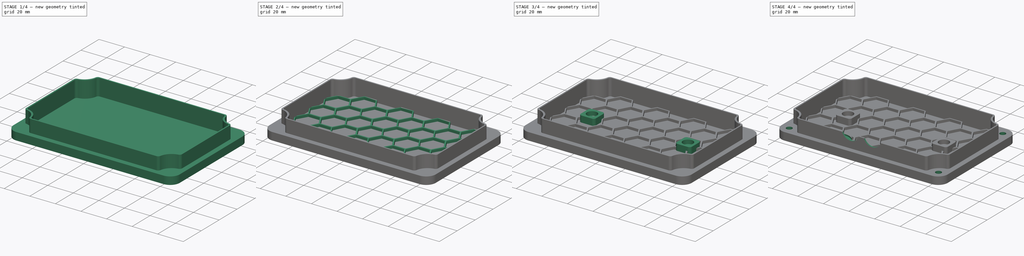
[diagram: build sequence overview — one tinted view per stage of 4, left to right]
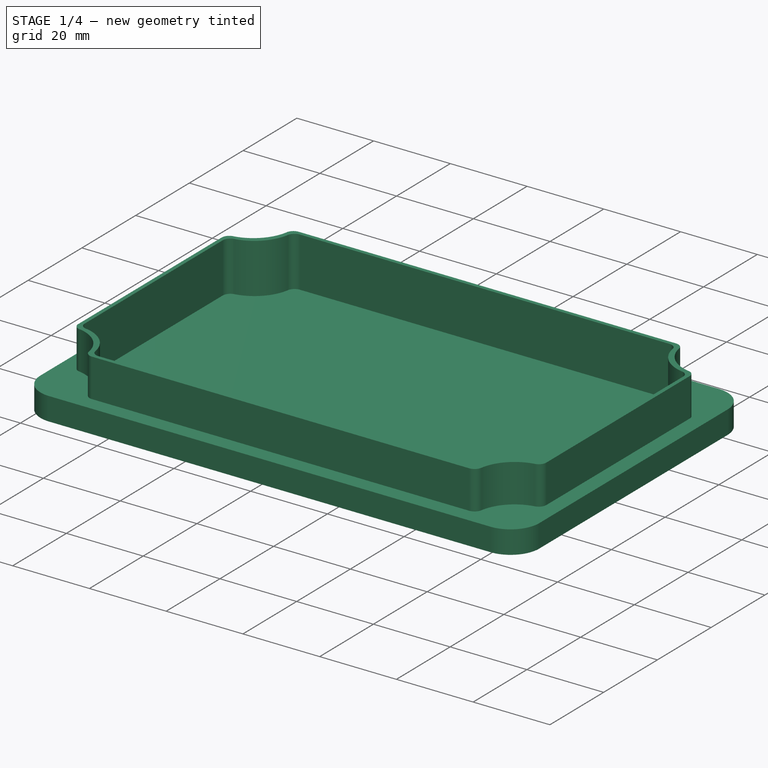
[diagram: stage 1 of 4 — iso view after this stage's code; geometry added in this stage tinted green]
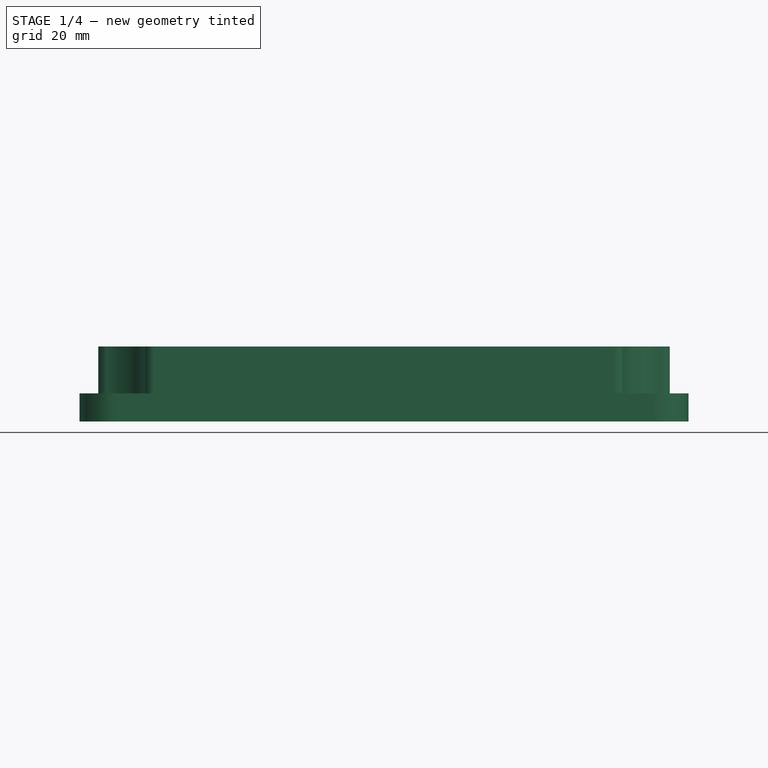
[diagram: stage 1 of 4 — front view after this stage's code; geometry added in this stage tinted green]
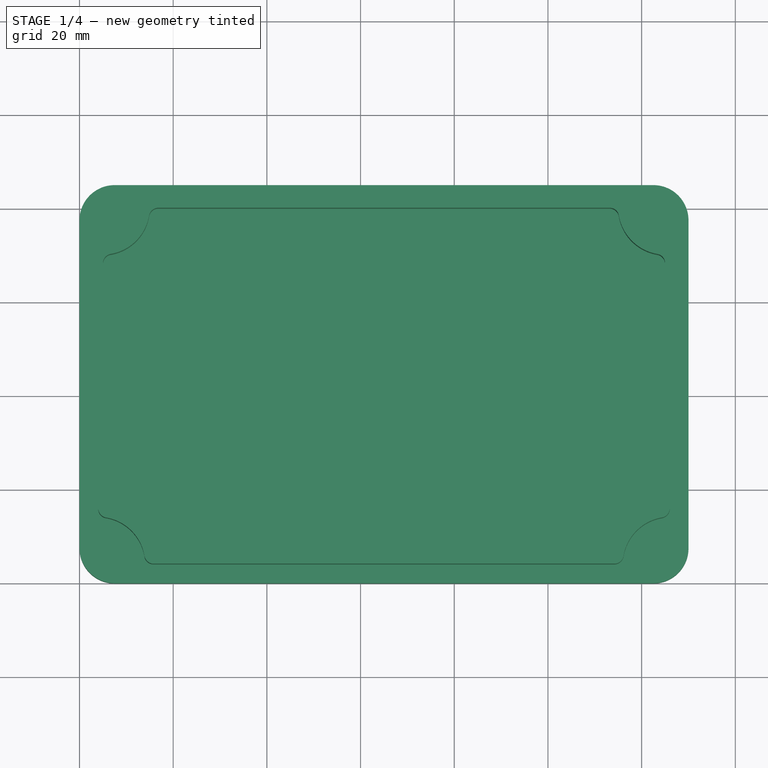
[diagram: stage 1 of 4 — top view after this stage's code; geometry added in this stage tinted green]
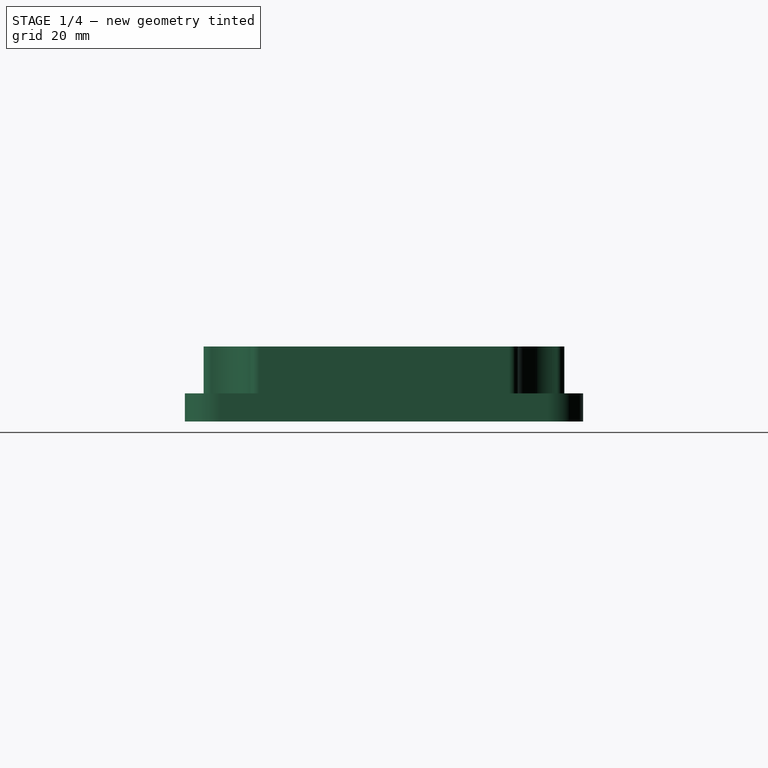
[diagram: stage 1 of 4 — right view after this stage's code; geometry added in this stage tinted green]
FCSTD DOCUMENT  (FreeCAD 0.20R27319 (Git))
Label: Base-Hexa
License: All rights reserved
LicenseURL: http://en.wikipedia.org/wiki/All_rights_reserved
objects: Sketcher::SketchObject×12, PartDesign::Pad×4, PartDesign::Pocket×4, PartDesign::Hole×3, PartDesign::Line×3, PartDesign::ShapeBinder×2, PartDesign::LinearPattern×2, PartDesign::CoordinateSystem×1, PartDesign::MultiTransform×1, PartDesign::Body×1
note: 44 computed .brp shape members not serialized (recipe doc carries the construction recipe); baked Part::Feature solids carry a one-line shape summary decoded from their .brp

FEATURE [PartDesign::ShapeBinder] ShapeBinder
  TraceSupport = true
FEATURE [Sketcher::SketchObject] Sketch010
  ExternalGeometry = -> [ShapeBinder]
  FullyConstrained = true
  MapMode = 5
  Placement = pos=(0,0,0) rot=(1,0,0;3.14159rad)
  Support = -> [ShapeBinder]
  sketch-geometry (23):
    g0: GeomPoint X=5 Y=-5 Z=0
    g1: GeomPoint X=125 Y=-80 Z=0
    g2: GeomPoint X=65 Y=-42.5 Z=0
    g3: ArcOfCircle CenterX=5 CenterY=-80 CenterZ=0 NormalX=0 NormalY=0 NormalZ=1 AngleXU=0 Radius=10 StartAngle=0.167448 EndAngle=1.40335
    g4: ArcOfCircle CenterX=7 CenterY=-68.1678 CenterZ=0 NormalX=0 NormalY=0 NormalZ=1 AngleXU=0 Radius=2 StartAngle=3.14159 EndAngle=4.54494
    g5: ArcOfCircle CenterX=5 CenterY=-5 CenterZ=0 NormalX=0 NormalY=0 NormalZ=1 AngleXU=0 Radius=10 StartAngle=4.87984 EndAngle=6.11574
    g6: ArcOfCircle CenterX=125 CenterY=-5 CenterZ=0 NormalX=0 NormalY=0 NormalZ=1 AngleXU=0 Radius=10 StartAngle=3.30904 EndAngle=4.54494
    g7: ArcOfCircle CenterX=125 CenterY=-80 CenterZ=0 NormalX=0 NormalY=0 NormalZ=1 AngleXU=0 Radius=10 StartAngle=1.73824 EndAngle=2.97414
    g8: LineSegment StartX=5 StartY=-80 StartZ=0 EndX=125 EndY=-80 EndZ=0
    g9: LineSegment StartX=125 StartY=-80 StartZ=0 EndX=125 EndY=-5 EndZ=0
    g10: LineSegment StartX=5 StartY=-5 StartZ=0 EndX=5 EndY=-80 EndZ=0
    g11: ArcOfCircle CenterX=7 CenterY=-16.8322 CenterZ=0 NormalX=0 NormalY=0 NormalZ=1 AngleXU=0 Radius=2 StartAngle=1.73824 EndAngle=3.14159
    g12: ArcOfCircle CenterX=123 CenterY=-16.8322 CenterZ=0 NormalX=0 NormalY=0 NormalZ=1 AngleXU=0 Radius=2 StartAngle=9e-16 EndAngle=1.40335
    g13: ArcOfCircle CenterX=16.8322 CenterY=-7 CenterZ=0 NormalX=0 NormalY=0 NormalZ=1 AngleXU=0 Radius=2 StartAngle=1.5708 EndAngle=2.97414
    g14: ArcOfCircle CenterX=113.168 CenterY=-7 CenterZ=0 NormalX=0 NormalY=0 NormalZ=1 AngleXU=0 Radius=2 StartAngle=0.167448 EndAngle=1.5708
    g15: ArcOfCircle CenterX=123 CenterY=-68.1678 CenterZ=0 NormalX=0 NormalY=0 NormalZ=1 AngleXU=0 Radius=2 StartAngle=4.87984 EndAngle=6.28319
    g16: ArcOfCircle CenterX=113.168 CenterY=-78 CenterZ=0 NormalX=0 NormalY=0 NormalZ=1 AngleXU=0 Radius=2 StartAngle=4.71239 EndAngle=6.11574
    g17: ArcOfCircle CenterX=16.8322 CenterY=-78 CenterZ=0 NormalX=0 NormalY=0 NormalZ=1 AngleXU=0 Radius=2 StartAngle=3.30904 EndAngle=4.71239
    g18: LineSegment StartX=5 StartY=-5 StartZ=0 EndX=125 EndY=-5 EndZ=0
    g19: LineSegment StartX=5 StartY=-16.8322 StartZ=0 EndX=5 EndY=-68.1678 EndZ=0
    g20: LineSegment StartX=125 StartY=-68.1678 StartZ=0 EndX=125 EndY=-16.8322 EndZ=0
    g21: LineSegment StartX=113.168 StartY=-5 StartZ=0 EndX=16.8322 EndY=-5 EndZ=0
    g22: LineSegment StartX=16.8322 StartY=-80 StartZ=0 EndX=113.168 EndY=-80 EndZ=0
  constraints (54):
    c: Tangent(g3,g4) = 1.5708
    c: Coincident(g7,g1)
    c: Coincident(g8,g9)
    c: Coincident(g10,g8)
    c: Horizontal(g8)
    c: Vertical(g9)
    c: Vertical(g10)
    c: Coincident(g8,g3)
    c: Coincident(g9,g6)
    c: Coincident(g0,g5)
    c: Symmetric(g3,g6,g2)
    c: Tangent(g5,g11) = 1.5708
    c: Tangent(g6,g12) = 1.5708
    c: Tangent(g5,g13) = 1.5708
    c: Tangent(g6,g14) = 1.5708
    c: Tangent(g7,g15) = 1.5708
    c: Tangent(g7,g16) = 1.5708
    c: Equal(g3,g5)
    c: Equal(g5,g6)
    c: Equal(g6,g7)
    c: Radius(g3) = 10
    c: Equal(g4,g13)
    c: Equal(g13,g11)
    c: Equal(g11,g14)
    c: Equal(g12,g15)
    c: Tangent(g16,g8) = -1.5708
    c: Tangent(g4,g10) = -1.5708
    c: Coincident(g8,g7)
    c: Tangent(g17,g8) = -1.5708
    c: Tangent(g17,g3) = 1.5708
    c: Radius(g17) = 2
    c: Tangent(g12,g9) = -1.5708
    c: Tangent(g15,g9) = -1.5708
    c: Tangent(g11,g10) = -1.5708
    c: Coincident(g18,g5)
    c: Horizontal(g18)
    c: Coincident(g18,g6)
    c: Coincident(g10,g5)
    c: Tangent(g13,g18) = 1.5708
    c: Tangent(g14,g18) = 1.5708
    c: Equal(g11,g12)
    c: Equal(g14,g17)
    c: Equal(g17,g16)
    c: Symmetric(g-3,g-5,g2)
    c: Coincident(g19,g11)
    c: Coincident(g19,g4)
    c: Coincident(g20,g15)
    c: Coincident(g20,g12)
    c: Coincident(g21,g14)
    c: Coincident(g21,g13)
    c: DistanceY(g5,g-4) = 1
    c: DistanceX(g-5,g11) = 1
    c: Coincident(g22,g17)
    c: Coincident(g22,g16)
FEATURE [Sketcher::SketchObject] Sketch011
  ExternalGeometry = -> [ShapeBinder]
  FullyConstrained = true
  MapMode = 5
  Placement = pos=(0,0,0) rot=(1,0,0;3.14159rad)
  Support = -> [ShapeBinder]
  sketch-geometry (12):
    g0: LineSegment StartX=7.5 StartY=-9e-16 StartZ=0 EndX=122.5 EndY=-9e-16 EndZ=0
    g1: LineSegment StartX=130 StartY=-7.5 StartZ=0 EndX=130 EndY=-77.5 EndZ=0
    g2: LineSegment StartX=122.5 StartY=-85 StartZ=0 EndX=7.5 EndY=-85 EndZ=0
    g3: LineSegment StartX=0 StartY=-77.5 StartZ=0 EndX=0 EndY=-7.5 EndZ=0
    g4: ArcOfCircle CenterX=7.5 CenterY=-7.5 CenterZ=0 NormalX=0 NormalY=0 NormalZ=1 AngleXU=0 Radius=7.5 StartAngle=1.5708 EndAngle=3.14159
    g5: GeomPoint X=0 Y=0 Z=0
    g6: ArcOfCircle CenterX=122.5 CenterY=-7.5 CenterZ=0 NormalX=0 NormalY=0 NormalZ=1 AngleXU=0 Radius=7.5 StartAngle=0 EndAngle=1.5708
    g7: GeomPoint X=130 Y=0 Z=0
    g8: ArcOfCircle CenterX=122.5 CenterY=-77.5 CenterZ=0 NormalX=0 NormalY=0 NormalZ=1 AngleXU=0 Radius=7.5 StartAngle=4.71239 EndAngle=6.28319
    g9: GeomPoint X=130 Y=-85 Z=0
    g10: ArcOfCircle CenterX=7.5 CenterY=-77.5 CenterZ=0 NormalX=0 NormalY=0 NormalZ=1 AngleXU=0 Radius=7.5 StartAngle=3.14159 EndAngle=4.71239
    g11: GeomPoint X=0 Y=-85 Z=0
  constraints (23):
    c: Horizontal(g0)
    c: Vertical(g1)
    c: Vertical(g3)
    c: Coincident(g5,g-1)
    c: PointOnObject(g5,g3)
    c: Tangent(g0,g4) = 1.5708
    c: Tangent(g3,g4) = 1.5708
    c: PointOnObject(g7,g1)
    c: PointOnObject(g7,g0)
    c: Tangent(g1,g6) = 1.5708
    c: Tangent(g0,g6) = 1.5708
    c: PointOnObject(g9,g1)
    c: PointOnObject(g9,g2)
    c: Tangent(g1,g8) = 1.5708
    c: Tangent(g2,g8) = 1.5708
    c: PointOnObject(g11,g2)
    c: PointOnObject(g11,g3)
    c: Tangent(g2,g10) = 1.5708
    c: Tangent(g3,g10) = 1.5708
    c: Coincident(g2,g-4)
    c: Coincident(g2,g-4)
    c: Coincident(g-3,g1)
    c: Coincident(g0,g-5)
FEATURE [PartDesign::Pad] Pad003
  Direction = (0,0,-1)
  Length = 6
  Length2 = 10
  Profile = -> Sketch011
  ReferenceAxis = -> Sketch011 [N_Axis]
  Type = 0
FEATURE [PartDesign::Pocket] Pocket005
  BaseFeature = -> Pad003
  Direction = (0,0,1)
  Length = 3
  Length2 = 5
  Profile = -> Sketch010
  ReferenceAxis = -> Sketch010 [N_Axis]
  Reversed = true
  Type = 0
FEATURE [Sketcher::SketchObject] Sketch012
  ExternalGeometry = -> [ShapeBinder]
  FullyConstrained = true
  MapMode = 5
  Placement = pos=(0,0,-6) rot=(1,0,0;3.14159rad)
  Support = -> [Pocket005]
  sketch-geometry (4):
    g0: Circle CenterX=6.65146 CenterY=-6.65148 CenterZ=0 NormalX=0 NormalY=0 NormalZ=1 AngleXU=0 Radius=2.8
    g1: Circle CenterX=123.349 CenterY=-6.65148 CenterZ=0 NormalX=0 NormalY=0 NormalZ=1 AngleXU=0 Radius=2.8
    g2: Circle CenterX=123.349 CenterY=-78.3485 CenterZ=0 NormalX=0 NormalY=0 NormalZ=1 AngleXU=0 Radius=2.8
    g3: Circle CenterX=6.65146 CenterY=-78.3485 CenterZ=0 NormalX=0 NormalY=0 NormalZ=1 AngleXU=0 Radius=2.8
  constraints (8):
    c: Coincident(g1,g-4)
    c: Coincident(g2,g-5)
    c: Coincident(g3,g-6)
    c: Coincident(g0,g-3)
    c: Equal(g0,g-3)
    c: Equal(g0,g1)
    c: Equal(g1,g2)
    c: Equal(g2,g3)
FEATURE [Sketcher::SketchObject] Sketch013
  ExternalGeometry = -> [ShapeBinder]
  FullyConstrained = true
  MapMode = 5
  Placement = pos=(0,0,0) rot=(1,0,0;3.14159rad)
  Support = -> [ShapeBinder]
  sketch-geometry (46):
    g0: GeomPoint X=5 Y=-5 Z=0
    g1: GeomPoint X=125 Y=-80 Z=0
    g2: GeomPoint X=65 Y=-42.5 Z=0
    g3: ArcOfCircle CenterX=5 CenterY=-80 CenterZ=0 NormalX=0 NormalY=0 NormalZ=1 AngleXU=0 Radius=10 StartAngle=0.167448 EndAngle=1.40335
    g4: ArcOfCircle CenterX=7 CenterY=-68.1678 CenterZ=0 NormalX=0 NormalY=0 NormalZ=1 AngleXU=0 Radius=2 StartAngle=3.14159 EndAngle=4.54494
    g5: ArcOfCircle CenterX=5 CenterY=-5 CenterZ=0 NormalX=0 NormalY=0 NormalZ=1 AngleXU=0 Radius=10 StartAngle=4.87984 EndAngle=6.11574
    g6: ArcOfCircle CenterX=125 CenterY=-5 CenterZ=0 NormalX=0 NormalY=0 NormalZ=1 AngleXU=0 Radius=10 StartAngle=3.30904 EndAngle=4.54494
    g7: ArcOfCircle CenterX=125 CenterY=-80 CenterZ=0 NormalX=0 NormalY=0 NormalZ=1 AngleXU=0 Radius=10 StartAngle=1.73824 EndAngle=2.97414
    g8: LineSegment StartX=5 StartY=-80 StartZ=0 EndX=125 EndY=-80 EndZ=0
    g9: LineSegment StartX=125 StartY=-80 StartZ=0 EndX=125 EndY=-5 EndZ=0
    g10: LineSegment StartX=5 StartY=-5 StartZ=0 EndX=5 EndY=-80 EndZ=0
    g11: ArcOfCircle CenterX=7 CenterY=-16.8322 CenterZ=0 NormalX=0 NormalY=0 NormalZ=1 AngleXU=0 Radius=2 StartAngle=1.73824 EndAngle=3.14159
    g12: ArcOfCircle CenterX=123 CenterY=-16.8322 CenterZ=0 NormalX=0 NormalY=0 NormalZ=1 AngleXU=0 Radius=2 StartAngle=-9e-16 EndAngle=1.40335
    g13: ArcOfCircle CenterX=16.8322 CenterY=-7 CenterZ=0 NormalX=0 NormalY=0 NormalZ=1 AngleXU=0 Radius=2 StartAngle=1.5708 EndAngle=2.97414
    g14: ArcOfCircle CenterX=113.168 CenterY=-7 CenterZ=0 NormalX=0 NormalY=0 NormalZ=1 AngleXU=0 Radius=2 StartAngle=0.167448 EndAngle=1.5708
    g15: ArcOfCircle CenterX=123 CenterY=-68.1678 CenterZ=0 NormalX=0 NormalY=0 NormalZ=1 AngleXU=0 Radius=2 StartAngle=4.87984 EndAngle=6.28319
    g16: ArcOfCircle CenterX=113.168 CenterY=-78 CenterZ=0 NormalX=0 NormalY=0 NormalZ=1 AngleXU=0 Radius=2 StartAngle=4.71239 EndAngle=6.11574
    g17: ArcOfCircle CenterX=16.8322 CenterY=-78 CenterZ=0 NormalX=0 NormalY=0 NormalZ=1 AngleXU=0 Radius=2 StartAngle=3.30904 EndAngle=4.71239
    g18: LineSegment StartX=5 StartY=-5 StartZ=0 EndX=125 EndY=-5 EndZ=0
    g19: LineSegment StartX=5 StartY=-16.8322 StartZ=0 EndX=5 EndY=-68.1678 EndZ=0
    g20: LineSegment StartX=125 StartY=-68.1678 StartZ=0 EndX=125 EndY=-16.8322 EndZ=0
    g21: LineSegment StartX=113.168 StartY=-5 StartZ=0 EndX=16.8322 EndY=-5 EndZ=0
    g22: LineSegment StartX=16.8322 StartY=-80 StartZ=0 EndX=113.168 EndY=-80 EndZ=0
    g23: GeomPoint X=4 Y=-4 Z=0
    g24: GeomPoint X=126 Y=-81 Z=0
    g25: GeomPoint X=65 Y=-42.5 Z=0
    g26: ArcOfCircle CenterX=4 CenterY=-81 CenterZ=0 NormalX=0 NormalY=0 NormalZ=1 AngleXU=0 Radius=10 StartAngle=0.167448 EndAngle=1.40335
    g27: ArcOfCircle CenterX=6 CenterY=-69.1678 CenterZ=0 NormalX=0 NormalY=0 NormalZ=1 AngleXU=0 Radius=2 StartAngle=3.14159 EndAngle=4.54494
    g28: ArcOfCircle CenterX=4 CenterY=-4 CenterZ=0 NormalX=0 NormalY=0 NormalZ=1 AngleXU=0 Radius=10 StartAngle=4.87984 EndAngle=6.11574
    g29: ArcOfCircle CenterX=126 CenterY=-4 CenterZ=0 NormalX=0 NormalY=0 NormalZ=1 AngleXU=0 Radius=10 StartAngle=3.30904 EndAngle=4.54494
    g30: ArcOfCircle CenterX=126 CenterY=-81 CenterZ=0 NormalX=0 NormalY=0 NormalZ=1 AngleXU=0 Radius=10 StartAngle=1.73824 EndAngle=2.97414
    g31: LineSegment StartX=4 StartY=-81 StartZ=0 EndX=126 EndY=-81 EndZ=0
    g32: LineSegment StartX=126 StartY=-81 StartZ=0 EndX=126 EndY=-4 EndZ=0
    g33: LineSegment StartX=4 StartY=-4 StartZ=0 EndX=4 EndY=-81 EndZ=0
    g34: ArcOfCircle CenterX=6 CenterY=-15.8322 CenterZ=0 NormalX=0 NormalY=0 NormalZ=1 AngleXU=0 Radius=2 StartAngle=1.73824 EndAngle=3.14159
    g35: ArcOfCircle CenterX=124 CenterY=-15.8322 CenterZ=0 NormalX=0 NormalY=0 NormalZ=1 AngleXU=0 Radius=2 StartAngle=3e-16 EndAngle=1.40335
    g36: ArcOfCircle CenterX=15.8322 CenterY=-6 CenterZ=0 NormalX=0 NormalY=0 NormalZ=1 AngleXU=0 Radius=2 StartAngle=1.5708 EndAngle=2.97414
    g37: ArcOfCircle CenterX=114.168 CenterY=-6 CenterZ=0 NormalX=0 NormalY=0 NormalZ=1 AngleXU=0 Radius=2 StartAngle=0.167448 EndAngle=1.5708
    g38: ArcOfCircle CenterX=124 CenterY=-69.1678 CenterZ=0 NormalX=0 NormalY=0 NormalZ=1 AngleXU=0 Radius=2 StartAngle=4.87984 EndAngle=6.28319
    g39: ArcOfCircle CenterX=114.168 CenterY=-79 CenterZ=0 NormalX=0 NormalY=0 NormalZ=1 AngleXU=0 Radius=2 StartAngle=4.71239 EndAngle=6.11574
    g40: ArcOfCircle CenterX=15.8322 CenterY=-79 CenterZ=0 NormalX=0 NormalY=0 NormalZ=1 AngleXU=0 Radius=2 StartAngle=3.30904 EndAngle=4.71239
    g41: LineSegment StartX=4 StartY=-4 StartZ=0 EndX=126 EndY=-4 EndZ=0
    g42: LineSegment StartX=4 StartY=-15.8322 StartZ=0 EndX=4 EndY=-69.1678 EndZ=0
    g43: LineSegment StartX=126 StartY=-69.1678 StartZ=0 EndX=126 EndY=-15.8322 EndZ=0
    g44: LineSegment StartX=114.168 StartY=-4 StartZ=0 EndX=15.8322 EndY=-4 EndZ=0
    g45: LineSegment StartX=15.8322 StartY=-81 StartZ=0 EndX=114.168 EndY=-81 EndZ=0
  constraints (107):
    c: Tangent(g3,g4) = 1.5708
    c: Coincident(g7,g1)
    c: Coincident(g8,g9)
    c: Coincident(g10,g8)
    c: Horizontal(g8)
    c: Vertical(g9)
    c: Vertical(g10)
    c: Coincident(g8,g3)
    c: Coincident(g9,g6)
    c: Coincident(g0,g5)
    c: Symmetric(g3,g6,g2)
    c: Tangent(g5,g11) = 1.5708
    c: Tangent(g6,g12) = 1.5708
    c: Tangent(g5,g13) = 1.5708
    c: Tangent(g6,g14) = 1.5708
    c: Tangent(g7,g15) = 1.5708
    c: Tangent(g7,g16) = 1.5708
    c: Equal(g3,g5)
    c: Equal(g5,g6)
    c: Equal(g6,g7)
    c: Radius(g3) = 10
    c: Equal(g4,g13)
    c: Equal(g13,g11)
    c: Equal(g11,g14)
    c: Equal(g12,g15)
    c: Tangent(g16,g8) = -1.5708
    c: Tangent(g4,g10) = -1.5708
    c: Coincident(g8,g7)
    c: Tangent(g17,g8) = -1.5708
    c: Tangent(g17,g3) = 1.5708
    c: Radius(g17) = 2
    c: Tangent(g12,g9) = -1.5708
    c: Tangent(g15,g9) = -1.5708
    c: Tangent(g11,g10) = -1.5708
    c: Coincident(g18,g5)
    c: Horizontal(g18)
    c: Coincident(g18,g6)
    c: Coincident(g10,g5)
    c: Tangent(g13,g18) = 1.5708
    c: Tangent(g14,g18) = 1.5708
    c: Equal(g11,g12)
    c: Equal(g14,g17)
    c: Equal(g17,g16)
    c: Coincident(g19,g11)
    c: Coincident(g19,g4)
    c: Coincident(g20,g15)
    c: Coincident(g20,g12)
    c: Coincident(g21,g14)
    c: Coincident(g21,g13)
    c: Coincident(g22,g17)
    c: Coincident(g22,g16)
    c: Tangent(g26,g27) = 1.5708
    c: Coincident(g30,g24)
    c: Coincident(g31,g32)
    c: Coincident(g33,g31)
    c: Horizontal(g31)
    c: Vertical(g32)
    c: Vertical(g33)
    c: Coincident(g31,g26)
    c: Coincident(g32,g29)
    c: Coincident(g23,g28)
    c: Symmetric(g26,g29,g25)
    c: Tangent(g28,g34) = 1.5708
    c: Tangent(g29,g35) = 1.5708
    c: Tangent(g28,g36) = 1.5708
    c: Tangent(g29,g37) = 1.5708
    c: Tangent(g30,g38) = 1.5708
    c: Tangent(g30,g39) = 1.5708
    c: Equal(g26,g28)
    c: Equal(g28,g29)
    c: Equal(g29,g30)
    c: Radius(g26) = 10
    c: Equal(g27,g36)
    c: Equal(g36,g34)
    c: Equal(g34,g37)
    c: Equal(g35,g38)
    c: Tangent(g39,g31) = -1.5708
    c: Tangent(g27,g33) = -1.5708
    c: Coincident(g31,g30)
    c: Tangent(g40,g31) = -1.5708
    c: Tangent(g40,g26) = 1.5708
    c: Radius(g40) = 2
    c: Tangent(g35,g32) = -1.5708
    c: Tangent(g38,g32) = -1.5708
    c: Tangent(g34,g33) = -1.5708
    c: Coincident(g41,g28)
    c: Horizontal(g41)
    c: Coincident(g41,g29)
    c: Coincident(g33,g28)
    c: Tangent(g36,g41) = 1.5708
    c: Tangent(g37,g41) = 1.5708
    c: Equal(g34,g35)
    c: Equal(g37,g40)
    c: Equal(g40,g39)
    c: Coincident(g42,g34)
    c: Coincident(g42,g27)
    c: Coincident(g43,g38)
    c: Coincident(g43,g35)
    c: Coincident(g44,g37)
    c: Coincident(g44,g36)
    c: Coincident(g45,g40)
    c: Coincident(g45,g39)
    c: Symmetric(g28,g30,g2)
    c: Coincident(g34,g-3)
    c: Coincident(g38,g-4)
    c: DistanceX(g27,g4) = 1
    c: DistanceY(g40,g17) = 1
FEATURE [PartDesign::Pad] Pad004  label="Pad-OtherSide"
  BaseFeature = -> Pocket005
  Direction = (0,0,-1)
  Length = 10
  Length2 = 10
  Profile = -> Sketch013
  ReferenceAxis = -> Sketch013 [N_Axis]
  Reversed = true
  Type = 0
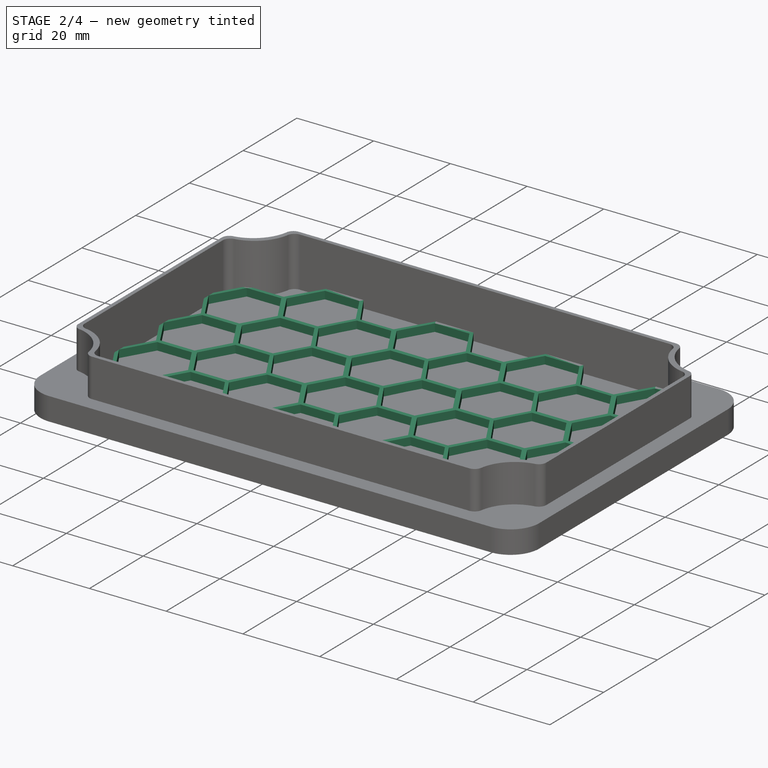
[diagram: stage 2 of 4 — iso view after this stage's code; geometry added in this stage tinted green]
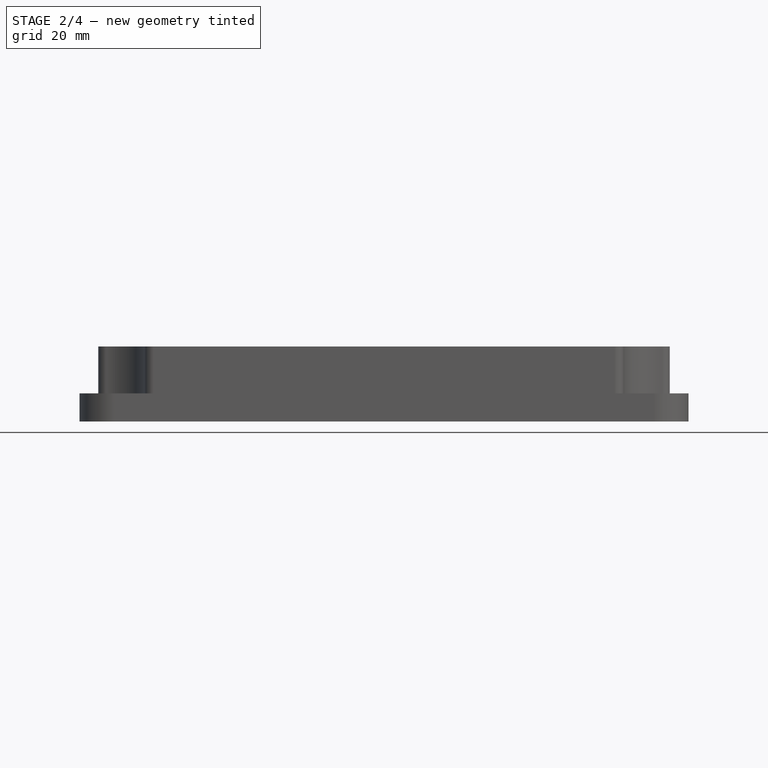
[diagram: stage 2 of 4 — front view after this stage's code; geometry added in this stage tinted green]
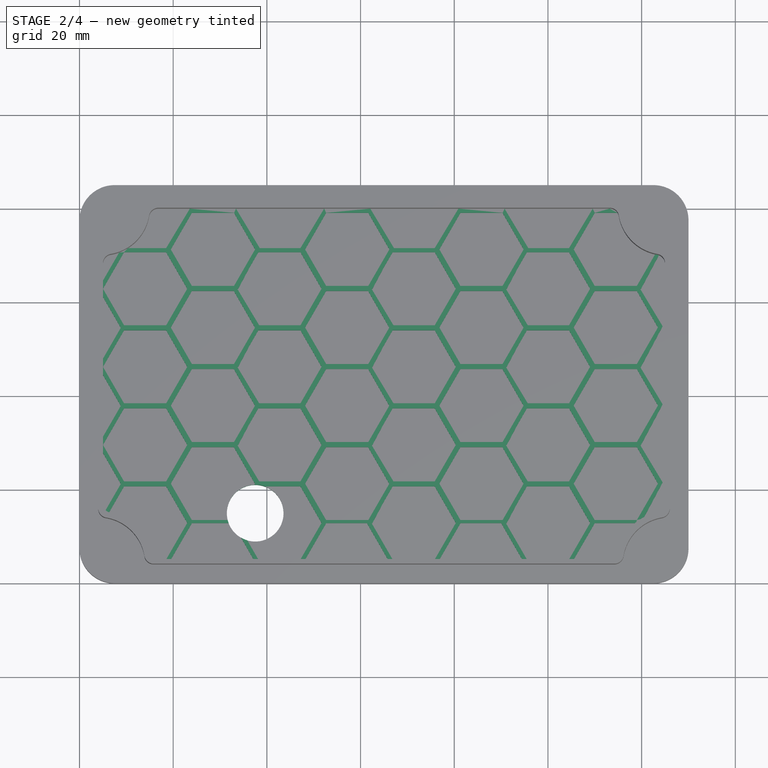
[diagram: stage 2 of 4 — top view after this stage's code; geometry added in this stage tinted green]
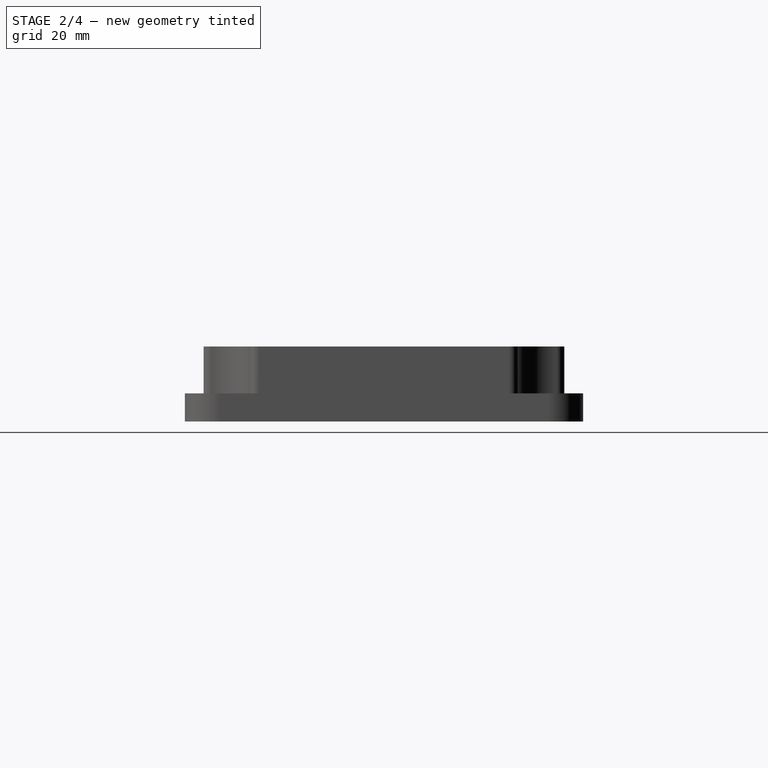
[diagram: stage 2 of 4 — right view after this stage's code; geometry added in this stage tinted green]
FEATURE [PartDesign::CoordinateSystem] LCS_1
  AttacherType = Attacher::AttachEngine3D
  MapMode = 5
  Support = -> [Pad004]
FEATURE [Sketcher::SketchObject] Sketch015
  ExternalGeometry = -> [Pocket005]
  FullyConstrained = true
  MapMode = 5
  Placement = pos=(0,0,-3) rot=(0,0,1;0rad)
  Support = -> [Pocket005]
  sketch-geometry (24):
    g0: ArcOfCircle CenterX=23.5 CenterY=46.5 CenterZ=0 NormalX=0 NormalY=0 NormalZ=1 AngleXU=0 Radius=2 StartAngle=1.5708 EndAngle=3.14159
    g1: LineSegment StartX=23.5 StartY=48.5 StartZ=0 EndX=31.5 EndY=48.5 EndZ=0
    g2: ArcOfCircle CenterX=31.5 CenterY=46.5 CenterZ=0 NormalX=0 NormalY=0 NormalZ=1 AngleXU=0 Radius=2 StartAngle=1.6e-15 EndAngle=1.5708
    g3: LineSegment StartX=33.5 StartY=46.5 StartZ=0 EndX=33.5 EndY=38.5 EndZ=0
    g4: ArcOfCircle CenterX=31.5 CenterY=38.5 CenterZ=0 NormalX=0 NormalY=0 NormalZ=1 AngleXU=0 Radius=2 StartAngle=4.71239 EndAngle=6.28319
    g5: LineSegment StartX=31.5 StartY=36.5 StartZ=0 EndX=23.5 EndY=36.5 EndZ=0
    g6: ArcOfCircle CenterX=23.5 CenterY=38.5 CenterZ=0 NormalX=0 NormalY=0 NormalZ=1 AngleXU=0 Radius=2 StartAngle=3.14159 EndAngle=4.71239
    g7: LineSegment StartX=21.5 StartY=38.5 StartZ=0 EndX=21.5 EndY=46.5 EndZ=0
    g8: GeomPoint X=21.5 Y=48.5 Z=0
    g9: GeomPoint X=33.5 Y=36.5 Z=0
    g10: ArcOfCircle CenterX=98.5 CenterY=46.5 CenterZ=0 NormalX=0 NormalY=0 NormalZ=1 AngleXU=0 Radius=2 StartAngle=1.5708 EndAngle=3.14159
    g11: LineSegment StartX=98.5 StartY=48.5 StartZ=0 EndX=106.5 EndY=48.5 EndZ=0
    g12: ArcOfCircle CenterX=106.5 CenterY=46.5 CenterZ=0 NormalX=0 NormalY=0 NormalZ=1 AngleXU=0 Radius=2 StartAngle=-9e-16 EndAngle=1.5708
    g13: LineSegment StartX=108.5 StartY=46.5 StartZ=0 EndX=108.5 EndY=38.5 EndZ=0
    g14: ArcOfCircle CenterX=106.5 CenterY=38.5 CenterZ=0 NormalX=0 NormalY=0 NormalZ=1 AngleXU=0 Radius=2 StartAngle=4.71239 EndAngle=6.28319
    g15: LineSegment StartX=106.5 StartY=36.5 StartZ=0 EndX=98.5 EndY=36.5 EndZ=0
    g16: ArcOfCircle CenterX=98.5 CenterY=38.5 CenterZ=0 NormalX=0 NormalY=0 NormalZ=1 AngleXU=0 Radius=2 StartAngle=3.14159 EndAngle=4.71239
    g17: LineSegment StartX=96.5 StartY=38.5 StartZ=0 EndX=96.5 EndY=46.5 EndZ=0
    g18: GeomPoint X=96.5 Y=48.5 Z=0
    g19: GeomPoint X=108.5 Y=36.5 Z=0
    g20: GeomPoint X=27.5 Y=42.5 Z=0
    g21: GeomPoint X=102.5 Y=42.5 Z=0
    g22: GeomPoint X=65 Y=42.5 Z=0
    g23: LineSegment StartX=27.5 StartY=42.5 StartZ=0 EndX=102.5 EndY=42.5 EndZ=0
  constraints (53):
    c: Tangent(g0,g1) = 1.5708
    c: Tangent(g1,g2) = 1.5708
    c: Tangent(g2,g3) = 1.5708
    c: Tangent(g3,g4) = 1.5708
    c: Tangent(g4,g5) = 1.5708
    c: Tangent(g5,g6) = 1.5708
    c: Tangent(g6,g7) = 1.5708
    c: Tangent(g7,g0) = 1.5708
    c: Horizontal(g1)
    c: Horizontal(g5)
    c: Vertical(g3)
    c: Vertical(g7)
    c: Equal(g2,g4)
    c: Equal(g4,g6)
    c: PointOnObject(g8,g1)
    c: PointOnObject(g8,g7)
    c: PointOnObject(g9,g3)
    c: PointOnObject(g9,g5)
    c: Tangent(g10,g11) = 1.5708
    c: Tangent(g11,g12) = 1.5708
    c: Tangent(g12,g13) = 1.5708
    c: Tangent(g13,g14) = 1.5708
    c: Tangent(g14,g15) = 1.5708
    c: Tangent(g15,g16) = 1.5708
    c: Tangent(g16,g17) = 1.5708
    c: Tangent(g17,g10) = 1.5708
    c: Horizontal(g11)
    c: Horizontal(g15)
    c: Vertical(g13)
    c: Vertical(g17)
    c: Equal(g10,g12)
    c: Equal(g12,g14)
    c: Equal(g14,g16)
    c: PointOnObject(g18,g11)
    c: PointOnObject(g18,g17)
    c: PointOnObject(g19,g13)
    c: PointOnObject(g19,g15)
    c: Symmetric(g16,g12,g21)
    c: Symmetric(g2,g6,g20)
    c: Equal(g1,g11)
    c: Equal(g3,g13)
    c: Symmetric(g21,g20,g22)
    c: Coincident(g23,g20)
    c: Coincident(g23,g21)
    c: Horizontal(g23)
    c: Equal(g2,g0)
    c: Equal(g6,g16)
    c: Radius(g4) = 2
    c: DistanceX(g8,g9) = 12  'Breite Klickfixadapter'
    c: DistanceY(g9,g8) = 12
    c: DistanceX(g23,g23) = 75
    c: DistanceX(g8,g19) = 87
    c: Symmetric(g-4,g-3,g22)
FEATURE [Sketcher::SketchObject] Sketch056
  ExternalGeometry = -> [Sketch010]
  FullyConstrained = true
  MapMode = 5
  Placement = pos=(0,0,-3) rot=(0,0,1;0rad)
  Support = -> [Pocket005]
  sketch-geometry (27):
    g0: LineSegment StartX=5 StartY=62.8954 StartZ=0 EndX=9.5 EndY=55.1012 EndZ=0
    g1: LineSegment StartX=9.5 StartY=55.1012 StartZ=0 EndX=18.5 EndY=55.1012 EndZ=0
    g2: LineSegment StartX=18.5 StartY=55.1012 StartZ=0 EndX=23 EndY=62.8954 EndZ=0
    g3: LineSegment StartX=23 StartY=62.8954 StartZ=0 EndX=18.5 EndY=70.6896 EndZ=0
    g4: LineSegment StartX=18.5 StartY=70.6896 StartZ=0 EndX=9.5 EndY=70.6896 EndZ=0
    g5: LineSegment StartX=9.5 StartY=70.6896 StartZ=0 EndX=5 EndY=62.8954 EndZ=0
    g6: Circle CenterX=14 CenterY=62.8954 CenterZ=0 NormalX=0 NormalY=0 NormalZ=1 AngleXU=0 Radius=9
    g7: LineSegment StartX=18.4849 StartY=71.5556 StartZ=0 EndX=9 EndY=71.5556 EndZ=0
    g8: LineSegment StartX=9 StartY=71.5556 StartZ=0 EndX=4 EndY=62.8954 EndZ=0
    g9: LineSegment StartX=4 StartY=62.8954 StartZ=0 EndX=9 EndY=54.2351 EndZ=0
    g10: LineSegment StartX=9 StartY=54.2351 StartZ=0 EndX=19 EndY=54.2351 EndZ=0
    g11: LineSegment StartX=19 StartY=54.2351 StartZ=0 EndX=23.9999 EndY=62.8603 EndZ=0
    g12: Circle CenterX=14 CenterY=62.8954 CenterZ=0 NormalX=0 NormalY=0 NormalZ=1 AngleXU=0 Radius=10
    g13: LineSegment StartX=19.4815 StartY=71.2969 StartZ=0 EndX=23.9815 EndY=63.5027 EndZ=0
    g14: LineSegment StartX=23.9815 StartY=63.5027 StartZ=0 EndX=32.9815 EndY=63.5027 EndZ=0
    g15: LineSegment StartX=32.9815 StartY=63.5027 StartZ=0 EndX=37.4815 EndY=71.2969 EndZ=0
    g16: LineSegment StartX=37.4815 StartY=71.2969 StartZ=0 EndX=32.9815 EndY=79.0912 EndZ=0
    g17: LineSegment StartX=32.9815 StartY=79.0912 StartZ=0 EndX=23.9815 EndY=79.0912 EndZ=0
    g18: LineSegment StartX=23.9815 StartY=79.0912 StartZ=0 EndX=19.4815 EndY=71.2969 EndZ=0
    g19: Circle CenterX=28.4815 CenterY=71.2969 CenterZ=0 NormalX=0 NormalY=0 NormalZ=1 AngleXU=0 Radius=9
    g20: LineSegment StartX=38.4782 StartY=71.5556 StartZ=0 EndX=33.4067 EndY=80 EndZ=0
    g21: LineSegment StartX=33.4067 StartY=80 StartZ=0 EndX=23.5564 EndY=80 EndZ=0
    g22: LineSegment StartX=23.5564 StartY=80 StartZ=0 EndX=18.4849 EndY=71.5556 EndZ=0
    g23: LineSegment StartX=23.9999 StartY=62.8603 StartZ=0 EndX=33.8502 EndY=62.8603 EndZ=0
    g24: LineSegment StartX=33.8502 StartY=62.8603 StartZ=0 EndX=38.4782 EndY=71.5556 EndZ=0
    g25: Circle CenterX=28.4815 CenterY=71.2969 CenterZ=0 NormalX=0 NormalY=0 NormalZ=1 AngleXU=0 Radius=10
    g26: LineSegment StartX=4 StartY=62.8954 StartZ=0 EndX=5 EndY=62.8954 EndZ=0
  constraints (67):
    c: Coincident(g0,g1)
    c: Coincident(g1,g2)
    c: Coincident(g2,g3)
    c: Coincident(g3,g4)
    c: Coincident(g4,g5)
    c: Coincident(g5,g0)
    c: Equal(g0, g1-g5) x5
    c: PointOnObject(g0,g6)
    c: PointOnObject(g1,g6)
    c: PointOnObject(g3,g6)
    c: PointOnObject(g4,g6)
    c: PointOnObject(g5,g6)
    c: Horizontal(g4)
    c: Coincident(g7,g8)
    c: Coincident(g8,g9)
    c: Coincident(g9,g10)
    c: Coincident(g10,g11)
    c: PointOnObject(g7,g12)
    c: PointOnObject(g9,g12)
    c: Diameter(g6) = 18
    c: Diameter(g12) = 20
    c: Coincident(g13,g14)
    c: Coincident(g14,g15)
    c: Coincident(g15,g16)
    c: Coincident(g16,g17)
    c: Coincident(g17,g18)
    c: Coincident(g18,g13)
    c: Equal(g13, g14-g18) x5
    c: PointOnObject(g13,g19)
    c: PointOnObject(g14,g19)
    c: PointOnObject(g15,g19)
    c: PointOnObject(g16,g19)
    c: PointOnObject(g17,g19)
    c: PointOnObject(g18,g19)
    c: Horizontal(g17)
    c: Coincident(g20,g21)
    c: Coincident(g21,g22)
    c: Coincident(g23,g24)
    c: Coincident(g24,g20)
    c: Equal(g20, g21-g24) x4
    c: PointOnObject(g20,g25)
    c: PointOnObject(g21,g25)
    c: PointOnObject(g22,g25)
    c: PointOnObject(g24,g25)
    c: Coincident(g25,g19)
    c: Equal(g6,g19) = 30
    c: Equal(g12,g25) = 32
    c: PointOnObject(g13,g12)
    c: Coincident(g7,g22)
    c: Horizontal(g7)
    c: Horizontal(g21)
    c: Horizontal(g23)
    c: Coincident(g11,g23)
    c: Horizontal(g10)
    c: Coincident(g12,g6)
    c: PointOnObject(g8,g12)
    c: Parallel(g5,g8)
    c: Parallel(g9,g0)
    c: Coincident(g26,g8)
    c: Coincident(g26,g0)
    c: Horizontal(g26)
    c: PointOnObject(g11,g12)
    c: PointOnObject(g2,g6)
    c: PointOnObject(g10,g12)
    c: PointOnObject(g23,g25)
    c: PointOnObject(g21,g-3)
    c: PointOnObject(g0,g-4)
FEATURE [PartDesign::Pad] Pad  label="Pad-Hexa"
  BaseFeature = -> Pad004
  Direction = (0,0,1)
  Length = 2
  Length2 = 10
  Profile = -> Sketch056
  ReferenceAxis = -> Sketch056 [N_Axis]
  Refine = true
  Type = 0
FEATURE [PartDesign::LinearPattern] LinearPattern
  Direction = -> Sketch056 [H_Axis]
  Length = 86
  Occurrences = 4
  Overlap = 0
  Refine = true
FEATURE [PartDesign::LinearPattern] LinearPattern001
  Direction = -> Sketch056 [V_Axis]
  Length = 50
  Occurrences = 4
  Overlap = 0
  Refine = true
  Reversed = true
FEATURE [PartDesign::MultiTransform] MultiTransform
  BaseFeature = -> Pad
  Originals = -> [Pad]
  Overlap = 0
  Refine = true
  Transformations = -> [LinearPattern,LinearPattern001]
FEATURE [Sketcher::SketchObject] Sketch014
  ExternalGeometry = -> [Pad004]
  FullyConstrained = true
  MapMode = 5
  Placement = pos=(0,0,-1) rot=(0,0,1;0rad)
  Support = -> [MultiTransform]
  sketch-geometry (2):
    g0: Circle CenterX=37.5 CenterY=15 CenterZ=0 NormalX=0 NormalY=0 NormalZ=1 AngleXU=0 Radius=6
    g1: LineSegment StartX=37.5 StartY=9e-16 StartZ=0 EndX=37.5 EndY=15 EndZ=0
  constraints (6):
    c: Diameter(g0) = 12
    c: Coincident(g1,g0)
    c: Vertical(g1)
    c: DistanceY(g1,g1) = 15
    c: PointOnObject(g1,g-3)
    c: DistanceX(g-3,g1) = 30
FEATURE [PartDesign::Hole] Hole001
  BaseFeature = -> MultiTransform
  CustomThreadClearance = 0
  Depth = 25
  DepthType = 0
  Diameter = 12.1
  DrillForDepth = false
  DrillPoint = 1
  DrillPointAngle = 118
  HoleCutCountersinkAngle = 90
  HoleCutCustomValues = false
  HoleCutDepth = 0
  HoleCutDiameter = 13.6
  HoleCutType = 0
  ModelThread = false
  Profile = -> Sketch014
  Refine = true
  Tapered = false
  TaperedAngle = 90
  ThreadClass = 0
  ThreadDepth = 25
  ThreadDepthType = 0
  ThreadDirection = 0
  ThreadFit = 0
  ThreadSize = 19
  ThreadType = 1
  Threaded = false
  UseCustomThreadClearance = false
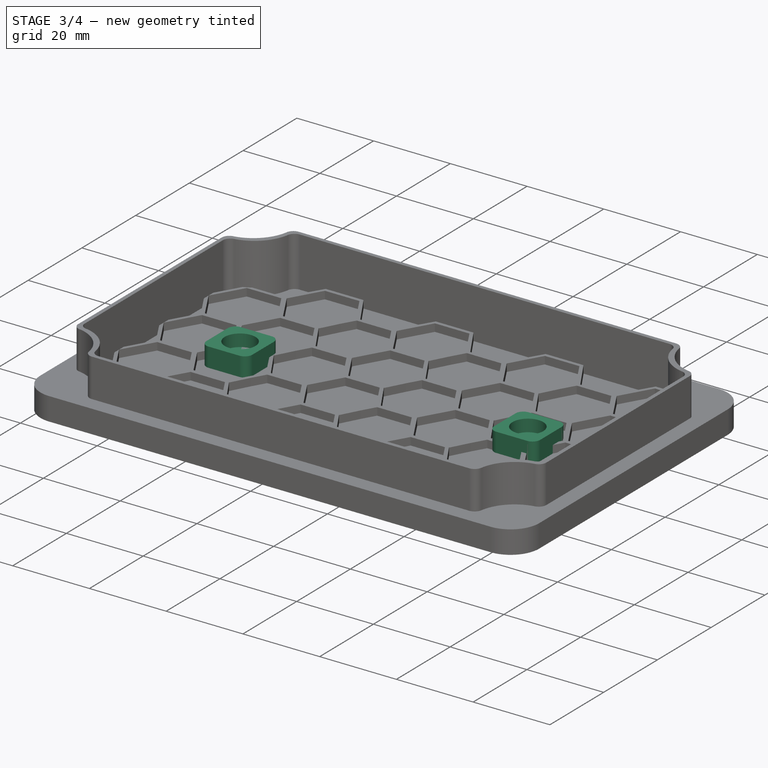
[diagram: stage 3 of 4 — iso view after this stage's code; geometry added in this stage tinted green]
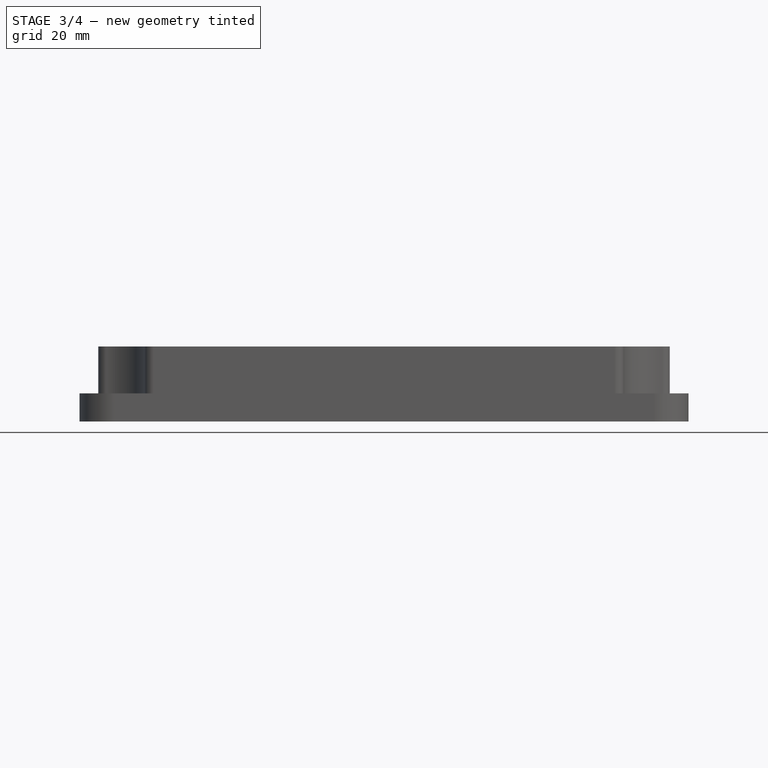
[diagram: stage 3 of 4 — front view after this stage's code; geometry added in this stage tinted green]
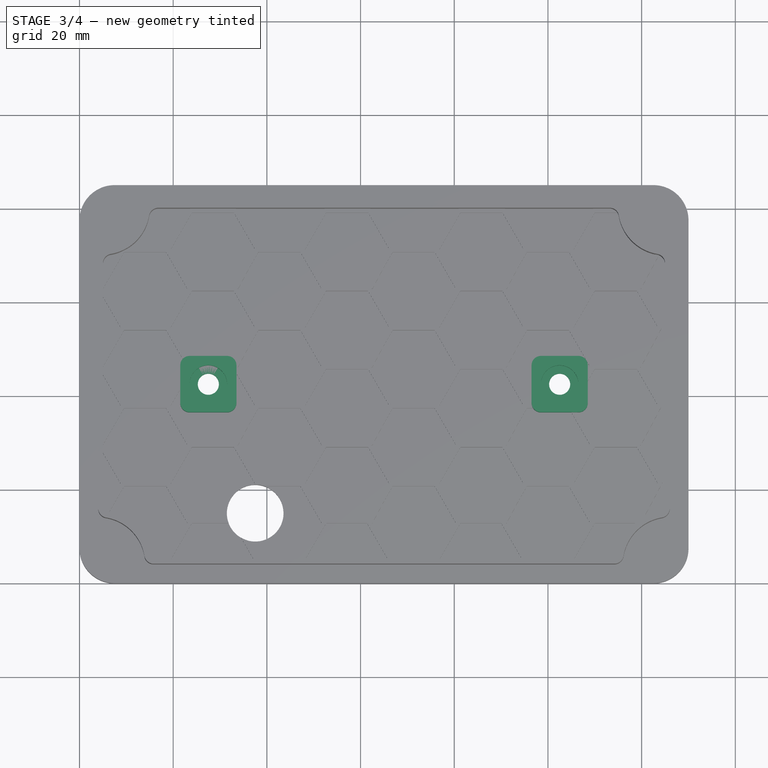
[diagram: stage 3 of 4 — top view after this stage's code; geometry added in this stage tinted green]
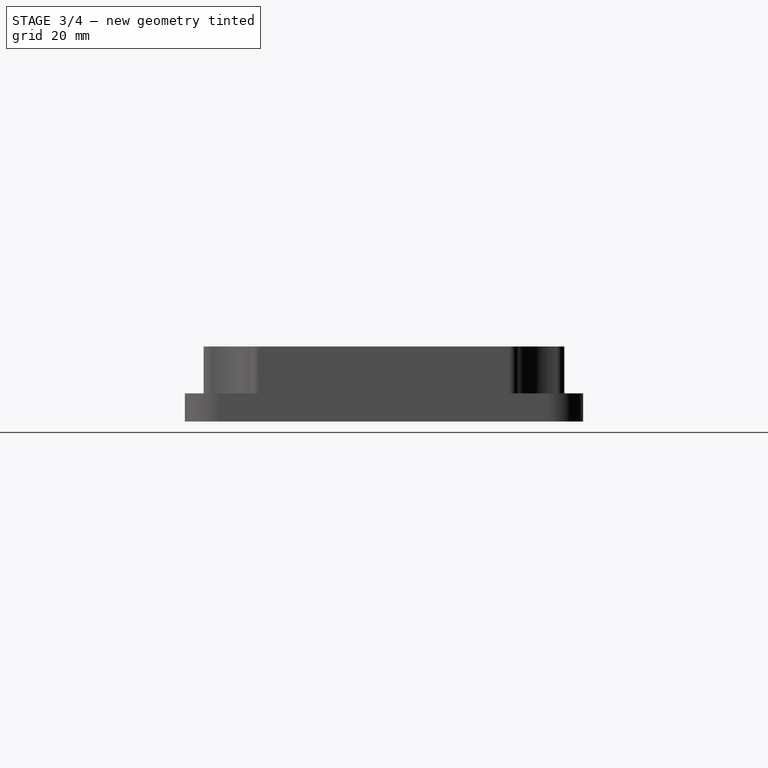
[diagram: stage 3 of 4 — right view after this stage's code; geometry added in this stage tinted green]
FEATURE [PartDesign::Pad] Pad005  label="Pad - Verstärkung Schraube Lenker"
  BaseFeature = -> Hole001
  Direction = (0,0,1)
  Length = 5
  Length2 = 10
  Profile = -> Sketch015
  ReferenceAxis = -> Sketch015 [N_Axis]
  Refine = true
  Type = 0
FEATURE [Sketcher::SketchObject] Sketch017
  ExternalGeometry = -> [Sketch015]
  FullyConstrained = true
  MapMode = 5
  Placement = pos=(0,0,-6) rot=(1,0,0;3.14159rad)
  Support = -> [Pad005]
  sketch-geometry (22):
    g0: ArcOfCircle CenterX=24.5 CenterY=-39.5 CenterZ=0 NormalX=0 NormalY=0 NormalZ=1 AngleXU=0 Radius=2 StartAngle=1.5708 EndAngle=3.14159
    g1: LineSegment StartX=24.5 StartY=-37.5 StartZ=0 EndX=30.5 EndY=-37.5 EndZ=0
    g2: ArcOfCircle CenterX=30.5 CenterY=-39.5 CenterZ=0 NormalX=0 NormalY=0 NormalZ=1 AngleXU=0 Radius=2 StartAngle=-9e-16 EndAngle=1.5708
    g3: LineSegment StartX=32.5 StartY=-39.5 StartZ=0 EndX=32.5 EndY=-45.5 EndZ=0
    g4: ArcOfCircle CenterX=30.5 CenterY=-45.5 CenterZ=0 NormalX=0 NormalY=0 NormalZ=1 AngleXU=0 Radius=2 StartAngle=4.71239 EndAngle=6.28319
    g5: LineSegment StartX=30.5 StartY=-47.5 StartZ=0 EndX=24.5 EndY=-47.5 EndZ=0
    g6: ArcOfCircle CenterX=24.5 CenterY=-45.5 CenterZ=0 NormalX=0 NormalY=0 NormalZ=1 AngleXU=0 Radius=2 StartAngle=3.14159 EndAngle=4.71239
    g7: LineSegment StartX=22.5 StartY=-45.5 StartZ=0 EndX=22.5 EndY=-39.5 EndZ=0
    g8: GeomPoint X=22.5 Y=-37.5 Z=0
    g9: GeomPoint X=32.5 Y=-47.5 Z=0
    g10: ArcOfCircle CenterX=99.5 CenterY=-39.5 CenterZ=0 NormalX=0 NormalY=0 NormalZ=1 AngleXU=0 Radius=2 StartAngle=1.5708 EndAngle=3.14159
    g11: LineSegment StartX=99.5 StartY=-37.5 StartZ=0 EndX=105.5 EndY=-37.5 EndZ=0
    g12: ArcOfCircle CenterX=105.5 CenterY=-39.5 CenterZ=0 NormalX=0 NormalY=0 NormalZ=1 AngleXU=0 Radius=2 StartAngle=0 EndAngle=1.5708
    g13: LineSegment StartX=107.5 StartY=-39.5 StartZ=0 EndX=107.5 EndY=-45.5 EndZ=0
    g14: ArcOfCircle CenterX=105.5 CenterY=-45.5 CenterZ=0 NormalX=0 NormalY=0 NormalZ=1 AngleXU=0 Radius=2 StartAngle=4.71239 EndAngle=6.28319
    g15: LineSegment StartX=105.5 StartY=-47.5 StartZ=0 EndX=99.5 EndY=-47.5 EndZ=0
    g16: ArcOfCircle CenterX=99.5 CenterY=-45.5 CenterZ=0 NormalX=0 NormalY=0 NormalZ=1 AngleXU=0 Radius=2 StartAngle=3.14159 EndAngle=4.71239
    g17: LineSegment StartX=97.5 StartY=-45.5 StartZ=0 EndX=97.5 EndY=-39.5 EndZ=0
    g18: GeomPoint X=97.5 Y=-37.5 Z=0
    g19: GeomPoint X=107.5 Y=-47.5 Z=0
    g20: GeomPoint X=27.5 Y=-42.5 Z=0
    g21: GeomPoint X=102.5 Y=-42.5 Z=0
  constraints (49):
    c: Equal(g4,g6)
    c: PointOnObject(g8,g1)
    c: PointOnObject(g8,g7)
    c: PointOnObject(g9,g3)
    c: PointOnObject(g9,g5)
    c: Tangent(g10,g11) = 1.5708
    c: Tangent(g11,g12) = 1.5708
    c: Tangent(g12,g13) = 1.5708
    c: Tangent(g13,g14) = 1.5708
    c: Tangent(g14,g15) = 1.5708
    c: Tangent(g15,g16) = 1.5708
    c: Tangent(g16,g17) = 1.5708
    c: Tangent(g17,g10) = 1.5708
    c: Horizontal(g11)
    c: Horizontal(g15)
    c: Vertical(g13)
    c: Vertical(g17)
    c: Equal(g10,g12)
    c: Equal(g12,g14)
    c: Equal(g14,g16)
    c: PointOnObject(g18,g11)
    c: PointOnObject(g18,g17)
    c: PointOnObject(g19,g13)
    c: PointOnObject(g19,g15)
    c: Equal(g10,g4)
    c: Horizontal(g1)
    c: Vertical(g3)
    c: Vertical(g7)
    c: Horizontal(g5)
    c: Tangent(g6,g7) = 1.5708
    c: Tangent(g3,g4) = 1.5708
    c: Tangent(g1,g2) = 1.5708
    c: Tangent(g0,g7) = 1.5708
    c: Tangent(g0,g1) = 1.5708
    c: Tangent(g3,g2) = 1.5708
    c: Tangent(g5,g4) = 1.5708
    c: Tangent(g5,g6) = 1.5708
    c: Equal(g6,g0)
    c: Equal(g0,g2)
    c: Radius(g0) = 2
    c: DistanceX(g0,g2) = 10
    c: DistanceY(g4,g1) = 10
    c: Symmetric(g6,g2,g20)
    c: Equal(g3,g13)
    c: Symmetric(g16,g12,g21)
    c: Equal(g13,g11)
    c: DistanceX(g6,g13) = 85
    c: Symmetric(g-3,g-4,g20)
    c: Symmetric(g-5,g-6,g21)
FEATURE [PartDesign::Pocket] Pocket007  label="Pocket - Nut Halter Lenker"
  BaseFeature = -> Pad005
  Direction = (0,0,1)
  Length = 3
  Length2 = 5
  Profile = -> Sketch017
  ReferenceAxis = -> Sketch017 [N_Axis]
  Refine = true
  Type = 0
FEATURE [Sketcher::SketchObject] Sketch016
  ExternalGeometry = -> [Pad005]
  FullyConstrained = true
  MapMode = 5
  Placement = pos=(0,0,2) rot=(0,0,1;0rad)
  Support = -> [Pocket007]
  sketch-geometry (2):
    g0: Circle CenterX=102.5 CenterY=42.5 CenterZ=0 NormalX=0 NormalY=0 NormalZ=1 AngleXU=0 Radius=2
    g1: Circle CenterX=27.5 CenterY=42.5 CenterZ=0 NormalX=0 NormalY=0 NormalZ=1 AngleXU=0 Radius=2
  constraints (4):
    c: Equal(g0,g1)
    c: Diameter(g0) = 4
    c: Symmetric(g-5,g-6,g0)
    c: Symmetric(g-4,g-3,g1)
FEATURE [PartDesign::Hole] Hole002
  BaseFeature = -> Pocket007
  CustomThreadClearance = 0
  Depth = 8
  DepthType = 0
  Diameter = 4.5
  DrillForDepth = false
  DrillPoint = 1
  DrillPointAngle = 118
  HoleCutCountersinkAngle = 90
  HoleCutCustomValues = false
  HoleCutDepth = 3.2
  HoleCutDiameter = 8
  HoleCutType = 6
  ModelThread = false
  Profile = -> Sketch016
  Refine = true
  Tapered = false
  TaperedAngle = 90
  ThreadClass = 0
  ThreadDepth = 8
  ThreadDepthType = 0
  ThreadDirection = 0
  ThreadFit = 0
  ThreadSize = 11
  ThreadType = 1
  Threaded = false
  UseCustomThreadClearance = false
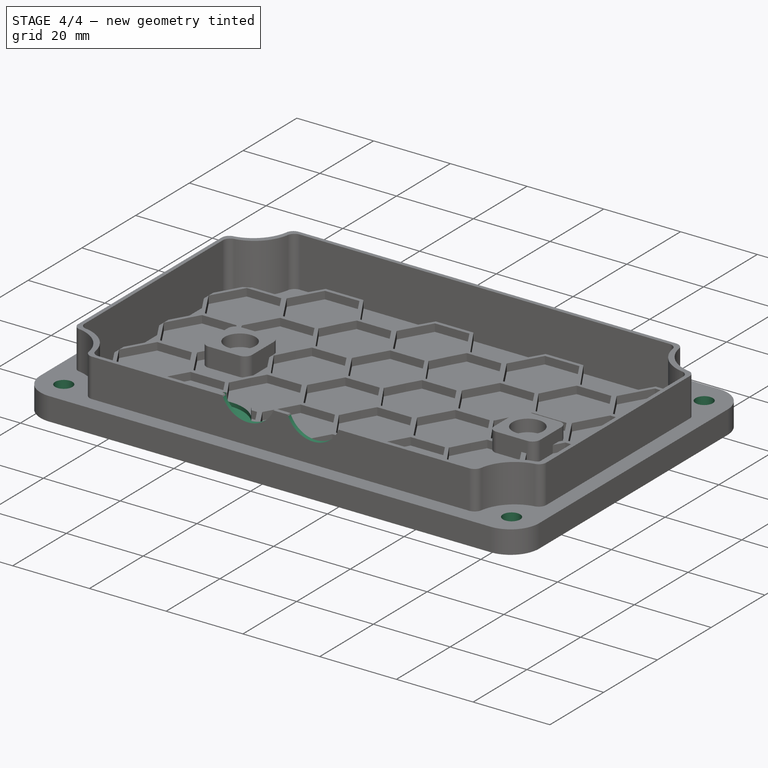
[diagram: stage 4 of 4 — iso view after this stage's code; geometry added in this stage tinted green]
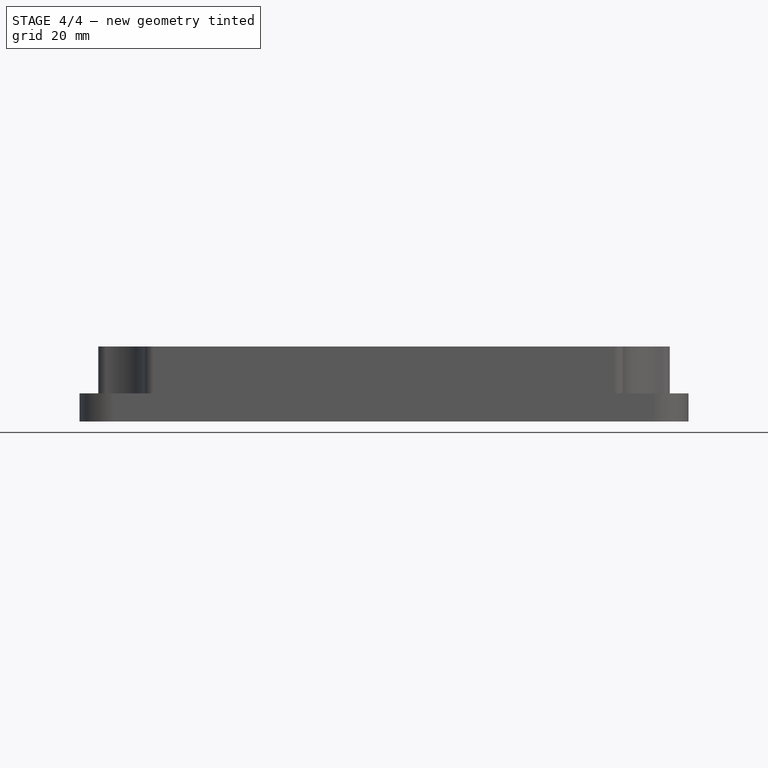
[diagram: stage 4 of 4 — front view after this stage's code; geometry added in this stage tinted green]
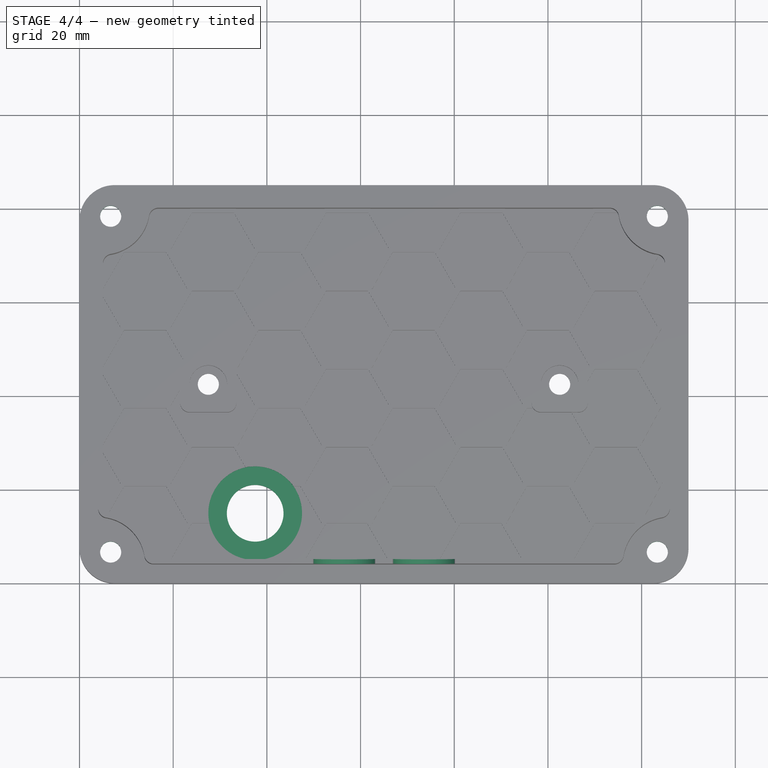
[diagram: stage 4 of 4 — top view after this stage's code; geometry added in this stage tinted green]
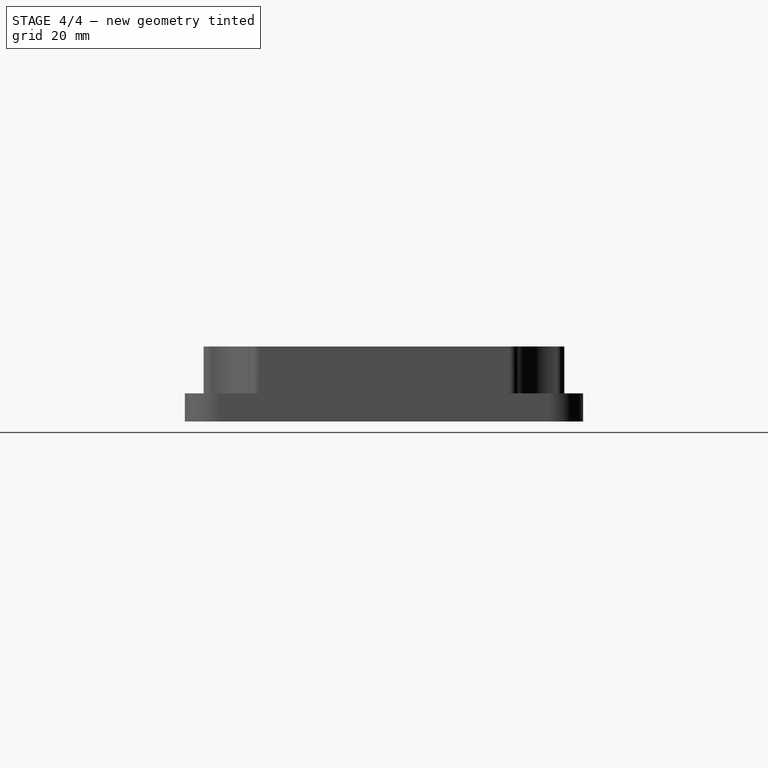
[diagram: stage 4 of 4 — right view after this stage's code; geometry added in this stage tinted green]
FEATURE [Sketcher::SketchObject] Sketch
  ExternalGeometry = -> [Sketch014,Hole002]
  FullyConstrained = true
  MapMode = 5
  Placement = pos=(0,0,-1) rot=(0,0,1;0rad)
  Support = -> [Hole002]
  sketch-geometry (1):
    g0: Circle CenterX=37.5 CenterY=15 CenterZ=0 NormalX=0 NormalY=0 NormalZ=1 AngleXU=0 Radius=10
  constraints (3):
    c: Diameter(g0) = 20
    c: Coincident(g0,g-3)
    c: Tangent(g0,g-4)
FEATURE [PartDesign::Pocket] Pocket  label="Pocket - Freiraum Mutter PG7"
  BaseFeature = -> Hole002
  Direction = (0,0,-1)
  Length = 3
  Length2 = 5
  Profile = -> Sketch
  ReferenceAxis = -> Sketch [N_Axis]
  Refine = true
  Type = 0
FEATURE [PartDesign::Line] HoleAxis_5  label="D_PG7"
  AttacherType = Attacher::AttachEngineLine
  Length = 17.0497
  MapMode = 19
  Placement = pos=(37.5,15,-1) rot=(0,0,1;0rad)
  ResizeMode = 1
  Support = -> [Sketch014]
FEATURE [PartDesign::Line] HoleAxis_6  label="HoleAxis_LenkeradapterR"
  AttacherType = Attacher::AttachEngineLine
  Length = 6.3408
  MapMode = 19
  Placement = pos=(27.5,42.5,-1.2) rot=(0,0,1;0rad)
  ResizeMode = 1
  Support = -> [Pocket]
FEATURE [PartDesign::Line] HoleAxis_7  label="HoleAxis_LenkeradapterL"
  AttacherType = Attacher::AttachEngineLine
  Length = 6.3408
  MapMode = 19
  Placement = pos=(102.5,42.5,-1.2) rot=(0,0,1;0rad)
  ResizeMode = 1
  Support = -> [Pocket]
FEATURE [PartDesign::Hole] Hole
  BaseFeature = -> Pocket
  CustomThreadClearance = 0
  Depth = 25
  DepthType = 0
  Diameter = 4.5
  DrillForDepth = false
  DrillPoint = 1
  DrillPointAngle = 118
  HoleCutCountersinkAngle = 90
  HoleCutCustomValues = false
  HoleCutDepth = 3.2
  HoleCutDiameter = 8
  HoleCutType = 6
  ModelThread = false
  Profile = -> Sketch012
  Refine = true
  Tapered = false
  TaperedAngle = 90
  ThreadClass = 0
  ThreadDepth = 25
  ThreadDepthType = 0
  ThreadDirection = 0
  ThreadFit = 0
  ThreadSize = 11
  ThreadType = 1
  Threaded = false
  UseCustomThreadClearance = false
FEATURE [PartDesign::ShapeBinder] ShapeBinder001
  Support = -> [Pocket007]
  TraceSupport = true
FEATURE [Sketcher::SketchObject] Sketch057
  ExternalGeometry = -> [ShapeBinder001]
  FullyConstrained = true
  MapMode = 5
  Placement = pos=(0,4,0) rot=(1,0,0;1.5708rad)
  Support = -> [Hole]
  sketch-geometry (4):
    g0: Circle CenterX=56.5 CenterY=12.5 CenterZ=0 NormalX=0 NormalY=0 NormalZ=1 AngleXU=0 Radius=7.1
    g1: LineSegment StartX=62.6 StartY=12.5 StartZ=0 EndX=63.6 EndY=12.5 EndZ=0
    g2: Circle CenterX=73.5 CenterY=12.5 CenterZ=0 NormalX=0 NormalY=0 NormalZ=1 AngleXU=0 Radius=7.1
    g3: LineSegment StartX=67.4 StartY=12.5 StartZ=0 EndX=66.4 EndY=12.5 EndZ=0
  constraints (12):
    c: PointOnObject(g1,g-3)
    c: PointOnObject(g1,g0)
    c: Horizontal(g1)
    c: Perpendicular(g-3,g1)
    c: Coincident(g-3,g0)
    c: DistanceX(g1,g1) = 1
    c: Coincident(g2,g-4)
    c: PointOnObject(g3,g-4)
    c: PointOnObject(g3,g2)
    c: Perpendicular(g-4,g3)
    c: Horizontal(g3)
    c: Equal(g3,g1)
FEATURE [PartDesign::Pocket] Pocket008
  BaseFeature = -> Hole
  Direction = (0,1,-2e-16)
  Length = 5
  Length2 = 5
  Profile = -> Sketch057
  ReferenceAxis = -> Sketch057 [N_Axis]
  Refine = true
  Type = 0
FEATURE [Sketcher::SketchObject] Sketch058
  FullyConstrained = false
  MapMode = 5
  Placement = pos=(0,0,-6) rot=(1,0,0;3.14159rad)
  Support = -> [Pocket008]
  sketch-geometry (14):
    g0: ArcOfCircle CenterX=78.0327 CenterY=-22.7234 CenterZ=0 NormalX=0 NormalY=0 NormalZ=1 AngleXU=0 Radius=22.5 StartAngle=4.07369 EndAngle=5.35109
    g1: ArcOfCircle CenterX=78.0327 CenterY=-22.7234 CenterZ=0 NormalX=0 NormalY=0 NormalZ=1 AngleXU=0 Radius=22.5 StartAngle=0.932094 EndAngle=2.2095
    g2: LineSegment StartX=64.6193 StartY=-40.788 StartZ=0 EndX=64.6193 EndY=-4.65884 EndZ=0
    g3: LineSegment StartX=91.4462 StartY=-4.65884 StartZ=0 EndX=91.4462 EndY=-40.788 EndZ=0
    g4: ArcOfCircle CenterX=52.0327 CenterY=-22.7234 CenterZ=0 NormalX=0 NormalY=0 NormalZ=1 AngleXU=0 Radius=7 StartAngle=2.2095 EndAngle=4.07369
    g5: ArcOfCircle CenterX=104.033 CenterY=-22.7234 CenterZ=0 NormalX=0 NormalY=0 NormalZ=1 AngleXU=0 Radius=7 StartAngle=5.35109 EndAngle=7.21528
    g6: LineSegment StartX=47.8597 StartY=-17.1033 StartZ=0 EndX=64.6193 EndY=-4.65884 EndZ=0
    g7: LineSegment StartX=47.8597 StartY=-28.3435 StartZ=0 EndX=64.6193 EndY=-40.788 EndZ=0
    g8: LineSegment StartX=91.4462 StartY=-40.788 StartZ=0 EndX=108.206 EndY=-28.3435 EndZ=0
    g9: LineSegment StartX=108.206 StartY=-17.1033 StartZ=0 EndX=91.4462 EndY=-4.65884 EndZ=0
    g10: LineSegment StartX=47.8597 StartY=-17.1033 StartZ=0 EndX=47.8597 EndY=-28.3435 EndZ=0
    g11: LineSegment StartX=52.0327 StartY=-22.7234 StartZ=0 EndX=104.033 EndY=-22.7234 EndZ=0
    g12: Circle CenterX=52.0327 CenterY=-22.7234 CenterZ=0 NormalX=0 NormalY=0 NormalZ=1 AngleXU=0 Radius=1.75
    g13: Circle CenterX=104.033 CenterY=-22.7234 CenterZ=0 NormalX=0 NormalY=0 NormalZ=1 AngleXU=0 Radius=1.75
  constraints (33):
    c: Coincident(g1,g0)
    c: Coincident(g2,g0)
    c: Coincident(g2,g1)
    c: Vertical(g2)
    c: Coincident(g3,g1)
    c: Vertical(g3)
    c: Coincident(g0,g3)
    c: Coincident(g7,g4)
    c: Coincident(g7,g0)
    c: Coincident(g8,g0)
    c: Coincident(g9,g5)
    c: Coincident(g9,g1)
    c: Coincident(g10,g4)
    c: Coincident(g10,g4)
    c: Vertical(g10)
    c: Symmetric(g0,g1,g0)
    c: Symmetric(g4,g5,g0)
    c: Tangent(g6,g4) = 1.5708
    c: Tangent(g6,g1) = 1.5708
    c: Symmetric(g4,g5,g0)
    c: Coincident(g11,g4)
    c: Coincident(g11,g5)
    c: Horizontal(g11)
    c: Diameter(g1) = 45
    c: Tangent(g8,g5) = -1.5708
    c: DistanceX(g11,g11) = 52
    c: DistanceX(g0) = 78.0327
    c: DistanceY(g0) = -22.7234
    c: Radius(g5) = 7
    c: Coincident(g12,g4)
    c: Coincident(g13,g5)
    c: Equal(g12,g13)
    c: Diameter(g12) = 3.5
FEATURE [PartDesign::Body] Body  label="Base-Hexa"
  Group = -> [ShapeBinder,Sketch010,Sketch011,Pad003,Pocket005,Sketch012,Sketch013,Pad004,Pad,MultiTransform,LCS_1,Sketch014,Hole001,Sketch015,Pad005,Sketch016,Sketch017,Pocket007,Hole002,Sketch056,LinearPattern,LinearPattern001,Sketch,Pocket,HoleAxis_5,HoleAxis_6,HoleAxis_7,Hole,Sketch057,ShapeBinder001,Pocket008,Sketch058]
  Origin = -> Origin
  Tip = -> Pocket008
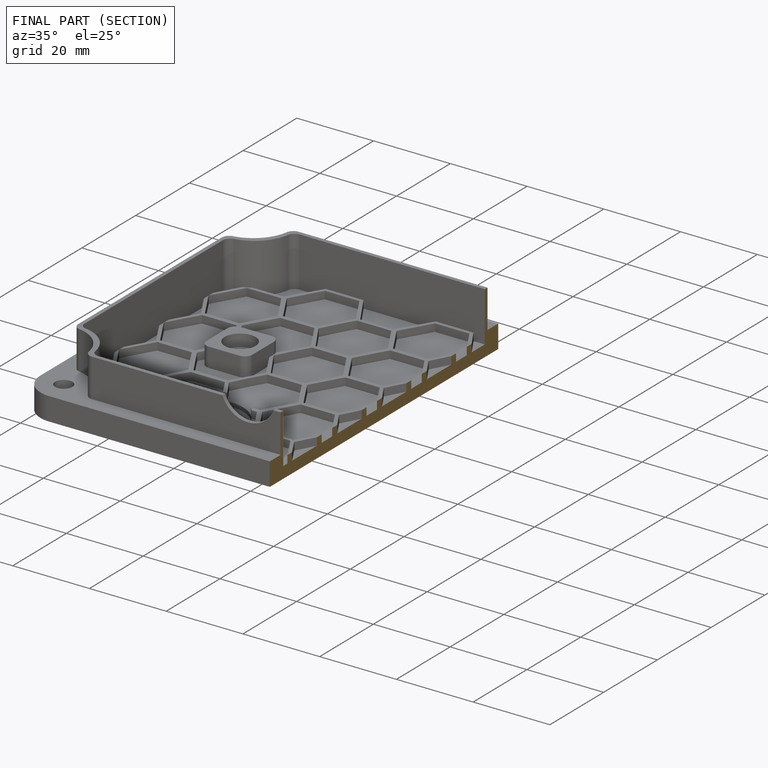
[diagram: finished part — half-section view (interior)]
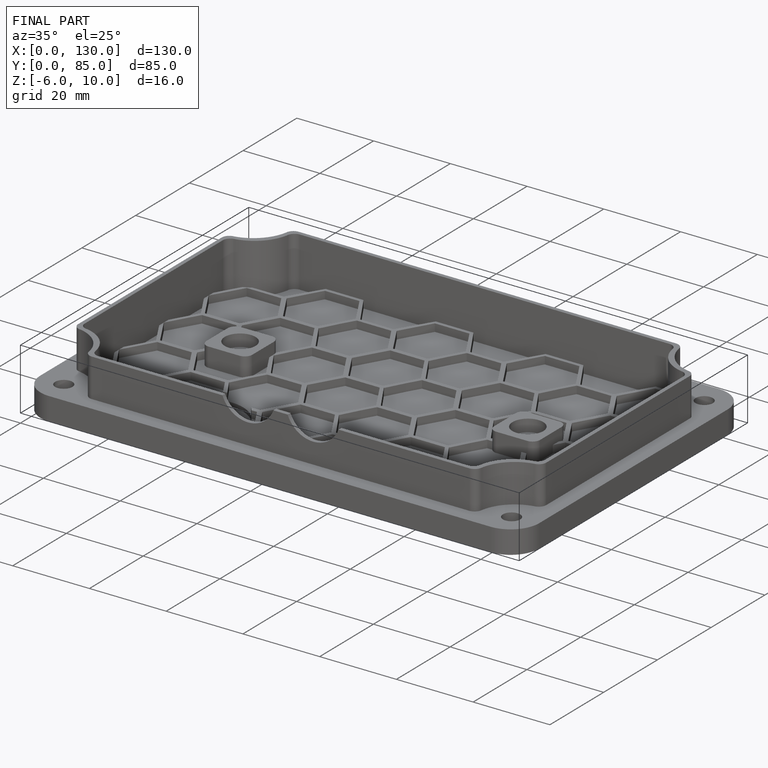
[diagram: finished part — iso view with bounding-box wireframe]
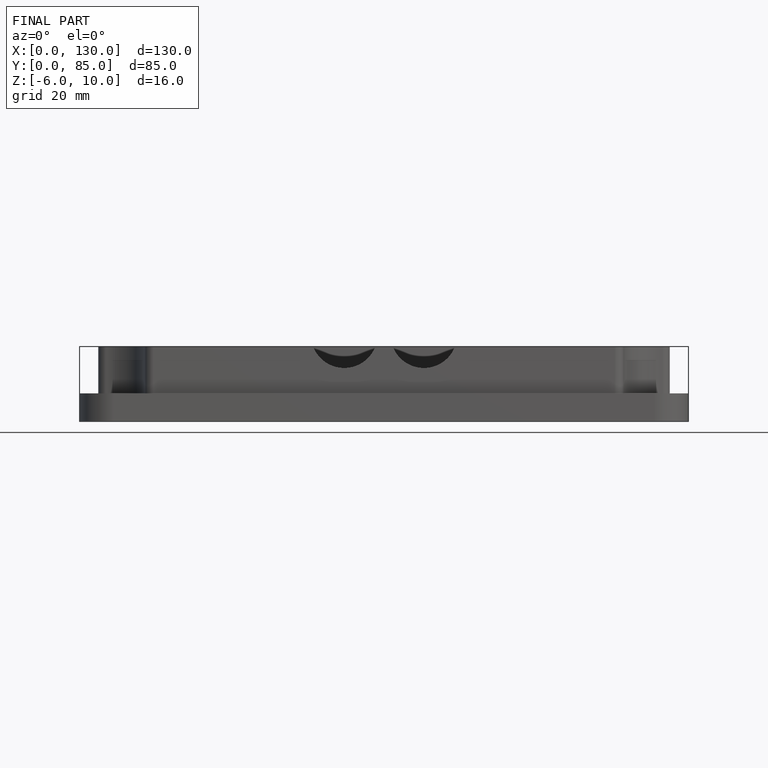
[diagram: finished part — front view with bounding-box wireframe]
